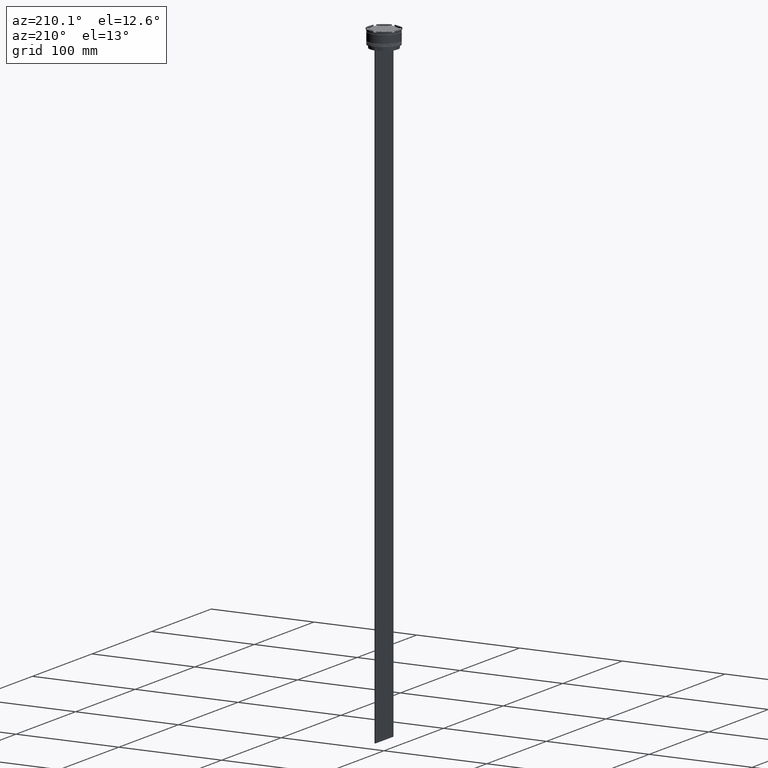
[diagram: clean part render]
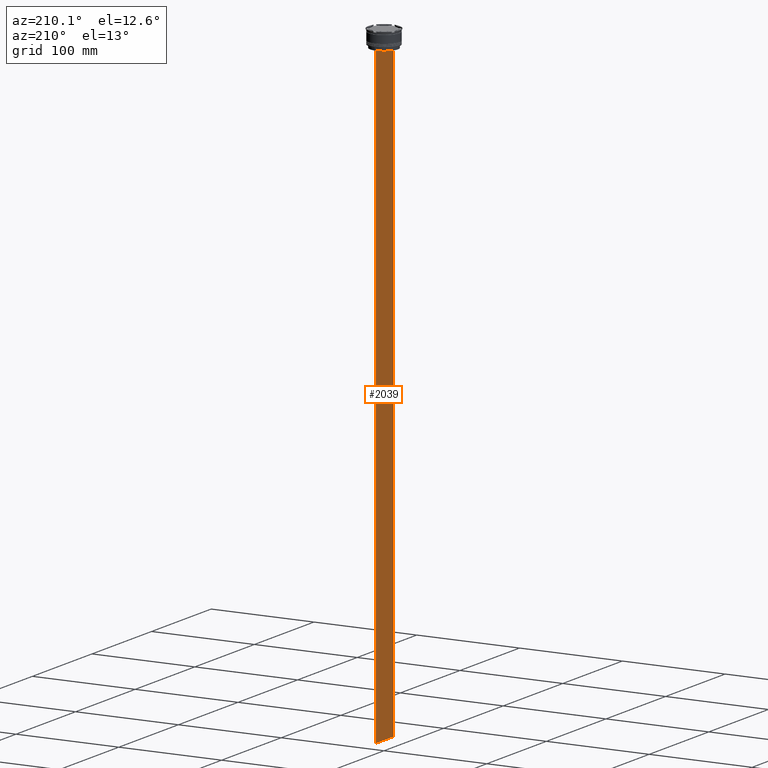
[diagram: same view with one face highlighted and labeled with its STEP entity id]
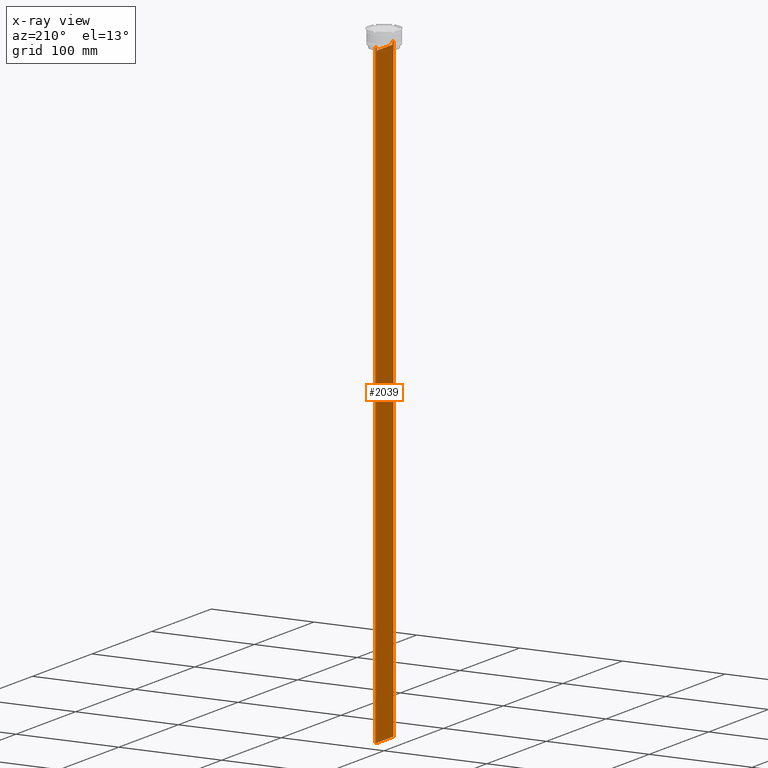
[diagram: x-ray of the same camera — body ghosted, the highlighted face saturated]
A machine part, auxiliary view. The second image highlights one B-rep face of the part: STEP entity #2039.
The next image is the same camera in x-ray: the body ghosted, the highlighted face saturated — about 0% of this face is hidden behind the body in this view.
In plain terms, the highlighted planar face has unit normal (-1, 0, 0).
Its self-contained STEP definition (entity closure, byte-faithful):
#21 = LINE ( 'NONE', #905, #2638 ) ;
#39 = VERTEX_POINT ( 'NONE', #1899 ) ;
#68 = DIRECTION ( 'NONE',  ( 0.000000000000000000, 1.000000000000000000, 0.000000000000000000 ) ) ;
#75 = CARTESIAN_POINT ( 'NONE',  ( -0.4999999999999998890, -15.00000000000000355, -14.00000000000000178 ) ) ;
#100 = CARTESIAN_POINT ( 'NONE',  ( -0.4999999999999998890, -13.39066839257847263, 0.000000000000000000 ) ) ;
#149 = CARTESIAN_POINT ( 'NONE',  ( -0.4999999999999998890, 13.39066839257847263, -14.49999999999999822 ) ) ;
#156 = VERTEX_POINT ( 'NONE', #1982 ) ;
#188 = DIRECTION ( 'NONE',  ( 0.000000000000000000, -1.000000000000000000, 0.000000000000000000 ) ) ;
#214 = VERTEX_POINT ( 'NONE', #1498 ) ;
#237 = VERTEX_POINT ( 'NONE', #149 ) ;
#300 = EDGE_CURVE ( 'NONE', #2136, #925, #2490, .T. ) ;
#307 = LINE ( 'NONE', #100, #2775 ) ;
#332 = CARTESIAN_POINT ( 'NONE',  ( -0.4999999999999998890, -15.00000000000000355, -14.00000000000000178 ) ) ;
#342 = VERTEX_POINT ( 'NONE', #2675 ) ;
#343 = LINE ( 'NONE', #1478, #2171 ) ;
#400 = EDGE_CURVE ( 'NONE', #214, #156, #307, .T. ) ;
#429 = VERTEX_POINT ( 'NONE', #2770 ) ;
#435 = LINE ( 'NONE', #1340, #452 ) ;
#452 = VECTOR ( 'NONE', #1560, 1000.000000000000000 ) ;
#546 = EDGE_CURVE ( 'NONE', #39, #429, #2293, .T. ) ;
#591 = VECTOR ( 'NONE', #68, 1000.000000000000000 ) ;
#603 = CARTESIAN_POINT ( 'NONE',  ( -0.4999999999999998890, 13.39066839257847086, -17.00000000000000000 ) ) ;
#648 = VERTEX_POINT ( 'NONE', #1044 ) ;
#653 = B_SPLINE_CURVE_WITH_KNOTS ( 'NONE', 3,
 ( #2026, #1811, #1167, #1383 ),
 .UNSPECIFIED., .F., .F.,
 ( 4, 4 ),
 ( 0.02359665025569773755, 0.02430399458637444096 ),
 .UNSPECIFIED. ) ;
#677 = DIRECTION ( 'NONE',  ( 0.000000000000000000, -1.000000000000000000, 0.000000000000000000 ) ) ;
#719 = VERTEX_POINT ( 'NONE', #2289 ) ;
#747 = LINE ( 'NONE', #911, #591 ) ;
#762 = EDGE_CURVE ( 'NONE', #1716, #342, #747, .T. ) ;
#777 = DIRECTION ( 'NONE',  ( -0.000000000000000000, -0.000000000000000000, 1.000000000000000000 ) ) ;
#852 = DIRECTION ( 'NONE',  ( 0.000000000000000000, 0.000000000000000000, -1.000000000000000000 ) ) ;
#857 = EDGE_CURVE ( 'NONE', #39, #342, #343, .T. ) ;
#876 = AXIS2_PLACEMENT_3D ( 'NONE', #1088, #2049, #2419 ) ;
#890 = CARTESIAN_POINT ( 'NONE',  ( -0.4999999999999998890, -13.55744911241550277, -14.33333542435722485 ) ) ;
#905 = CARTESIAN_POINT ( 'NONE',  ( -0.4999999999999998890, 13.40000000000000391, -17.00000000000000000 ) ) ;
#911 = CARTESIAN_POINT ( 'NONE',  ( -0.4999999999999998890, -15.00000000000000355, -614.0000000000000000 ) ) ;
#925 = VERTEX_POINT ( 'NONE', #332 ) ;
#966 = DIRECTION ( 'NONE',  ( 0.000000000000000000, -1.000000000000000000, 0.000000000000000000 ) ) ;
#972 = EDGE_CURVE ( 'NONE', #237, #1846, #2230, .T. ) ;
#978 = ORIENTED_EDGE ( 'NONE', *, *, #546, .F. ) ;
#1044 = CARTESIAN_POINT ( 'NONE',  ( -0.4999999999999998890, -13.89100428334828230, -14.00000000000000178 ) ) ;
#1063 = ORIENTED_EDGE ( 'NONE', *, *, #2654, .F. ) ;
#1088 = CARTESIAN_POINT ( 'NONE',  ( -0.4999999999999998890, -15.00000000000000355, 16.01666203960726165 ) ) ;
#1165 = CARTESIAN_POINT ( 'NONE',  ( -0.4999999999999998890, -15.00000000000000355, -14.00000000000000178 ) ) ;
#1167 = CARTESIAN_POINT ( 'NONE',  ( -0.4999999999999998890, 13.55744911232272543, -14.33333542444994002 ) ) ;
#1333 = VECTOR ( 'NONE', #966, 1000.000000000000000 ) ;
#1340 = CARTESIAN_POINT ( 'NONE',  ( -0.4999999999999998890, -15.00000000000000355, 16.01666203960726165 ) ) ;
#1343 = ORIENTED_EDGE ( 'NONE', *, *, #300, .F. ) ;
#1383 = CARTESIAN_POINT ( 'NONE',  ( -0.4999999999999998890, 13.39066839257847263, -14.49999999999999822 ) ) ;
#1462 = EDGE_CURVE ( 'NONE', #648, #2136, #1536, .T. ) ;
#1478 = CARTESIAN_POINT ( 'NONE',  ( -0.4999999999999998890, 14.99999999999999645, 16.01666203960726165 ) ) ;
#1498 = CARTESIAN_POINT ( 'NONE',  ( -0.4999999999999998890, -13.39066839257847086, -17.00000000000000000 ) ) ;
#1504 = ORIENTED_EDGE ( 'NONE', *, *, #972, .F. ) ;
#1509 = VECTOR ( 'NONE', #677, 1000.000000000000000 ) ;
#1525 = EDGE_CURVE ( 'NONE', #719, #237, #653, .T. ) ;
#1530 = FACE_OUTER_BOUND ( 'NONE', #2126, .T. ) ;
#1536 = LINE ( 'NONE', #2440, #1572 ) ;
#1560 = DIRECTION ( 'NONE',  ( 0.000000000000000000, 0.000000000000000000, -1.000000000000000000 ) ) ;
#1572 = VECTOR ( 'NONE', #188, 1000.000000000000000 ) ;
#1589 = DIRECTION ( 'NONE',  ( 0.000000000000000000, -1.000000000000000000, 0.000000000000000000 ) ) ;
#1595 = ORIENTED_EDGE ( 'NONE', *, *, #2884, .F. ) ;
#1608 = PLANE ( 'NONE',  #876 ) ;
#1619 = B_SPLINE_CURVE_WITH_KNOTS ( 'NONE', 3,
 ( #1999, #890, #2672, #1975 ),
 .UNSPECIFIED., .F., .F.,
 ( 4, 4 ),
 ( 0.06160226316123729867, 0.06231007364084071437 ),
 .UNSPECIFIED. ) ;
#1646 = DIRECTION ( 'NONE',  ( 0.000000000000000000, -1.000000000000000000, 0.000000000000000000 ) ) ;
#1716 = VERTEX_POINT ( 'NONE', #2308 ) ;
#1728 = ORIENTED_EDGE ( 'NONE', *, *, #1462, .F. ) ;
#1811 = CARTESIAN_POINT ( 'NONE',  ( -0.4999999999999998890, 13.72422766736833566, -14.16666868251365052 ) ) ;
#1834 = LINE ( 'NONE', #75, #1333 ) ;
#1846 = VERTEX_POINT ( 'NONE', #603 ) ;
#1899 = CARTESIAN_POINT ( 'NONE',  ( -0.4999999999999998890, 14.99999999999999645, -14.00000000000000178 ) ) ;
#1934 = ORIENTED_EDGE ( 'NONE', *, *, #857, .T. ) ;
#1962 = EDGE_CURVE ( 'NONE', #156, #648, #1619, .T. ) ;
#1975 = CARTESIAN_POINT ( 'NONE',  ( -0.4999999999999998890, -13.89100428334828230, -14.00000000000000178 ) ) ;
#1982 = CARTESIAN_POINT ( 'NONE',  ( -0.4999999999999998890, -13.39066839257847263, -14.49999999999999822 ) ) ;
#1999 = CARTESIAN_POINT ( 'NONE',  ( -0.4999999999999998890, -13.39066839257847263, -14.49999999999999822 ) ) ;
#2026 = CARTESIAN_POINT ( 'NONE',  ( -0.4999999999999998890, 13.89100428334828230, -14.00000000000000178 ) ) ;
#2039 = ADVANCED_FACE ( 'NONE', ( #1530 ), #1608, .T. ) ;
#2049 = DIRECTION ( 'NONE',  ( -1.000000000000000000, 0.000000000000000000, 0.000000000000000000 ) ) ;
#2065 = CARTESIAN_POINT ( 'NONE',  ( -0.4999999999999998890, -15.00000000000000355, -14.00000000000000178 ) ) ;
#2085 = ORIENTED_EDGE ( 'NONE', *, *, #762, .F. ) ;
#2126 = EDGE_LOOP ( 'NONE', ( #2179, #1063, #978, #1934, #2085, #1595, #1343, #1728, #2492, #2240, #2714, #1504 ) ) ;
#2136 = VERTEX_POINT ( 'NONE', #2767 ) ;
#2169 = VECTOR ( 'NONE', #1646, 1000.000000000000000 ) ;
#2171 = VECTOR ( 'NONE', #2576, 1000.000000000000000 ) ;
#2179 = ORIENTED_EDGE ( 'NONE', *, *, #1525, .F. ) ;
#2224 = VECTOR ( 'NONE', #852, 1000.000000000000000 ) ;
#2230 = LINE ( 'NONE', #2427, #2224 ) ;
#2240 = ORIENTED_EDGE ( 'NONE', *, *, #400, .F. ) ;
#2289 = CARTESIAN_POINT ( 'NONE',  ( -0.4999999999999998890, 13.89100428334828230, -14.00000000000000178 ) ) ;
#2293 = LINE ( 'NONE', #2065, #2169 ) ;
#2308 = CARTESIAN_POINT ( 'NONE',  ( -0.4999999999999998890, -15.00000000000000355, -614.0000000000000000 ) ) ;
#2418 = EDGE_CURVE ( 'NONE', #1846, #214, #21, .T. ) ;
#2419 = DIRECTION ( 'NONE',  ( 0.000000000000000000, 0.000000000000000000, 1.000000000000000000 ) ) ;
#2427 = CARTESIAN_POINT ( 'NONE',  ( -0.4999999999999998890, 13.39066839257847263, 0.000000000000000000 ) ) ;
#2440 = CARTESIAN_POINT ( 'NONE',  ( -0.4999999999999998890, -15.00000000000000355, -14.00000000000000178 ) ) ;
#2490 = LINE ( 'NONE', #1165, #1509 ) ;
#2492 = ORIENTED_EDGE ( 'NONE', *, *, #1962, .F. ) ;
#2576 = DIRECTION ( 'NONE',  ( 0.000000000000000000, 0.000000000000000000, -1.000000000000000000 ) ) ;
#2638 = VECTOR ( 'NONE', #1589, 1000.000000000000000 ) ;
#2654 = EDGE_CURVE ( 'NONE', #429, #719, #1834, .T. ) ;
#2672 = CARTESIAN_POINT ( 'NONE',  ( -0.4999999999999998890, -13.72422766745777345, -14.16666868242426958 ) ) ;
#2675 = CARTESIAN_POINT ( 'NONE',  ( -0.4999999999999998890, 14.99999999999999645, -614.0000000000000000 ) ) ;
#2714 = ORIENTED_EDGE ( 'NONE', *, *, #2418, .F. ) ;
#2767 = CARTESIAN_POINT ( 'NONE',  ( -0.4999999999999998890, -14.89160837518903513, -14.00000000000000178 ) ) ;
#2770 = CARTESIAN_POINT ( 'NONE',  ( -0.4999999999999998890, 14.89160837518903513, -14.00000000000000178 ) ) ;
#2775 = VECTOR ( 'NONE', #777, 1000.000000000000000 ) ;
#2884 = EDGE_CURVE ( 'NONE', #925, #1716, #435, .T. ) ;